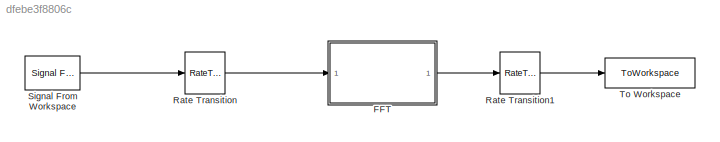
MODEL slx_dfebe3f8806c
KIND model
CONFIG AbsTol = auto
CONFIG EnableMultiTasking = off
CONFIG FixedStep = auto
CONFIG InitFcn = simulinkInitFFT
CONFIG MaxStep = auto
CONFIG MinStep = auto
CONFIG PostLoadFcn = addpath([fileparts(which(bdroot)) filesep '..' filesep])
CONFIG RelTol = 1e-3
CONFIG SampleTimeConstraint = Unconstrained
CONFIG SolverName = FixedStepDiscrete
CONFIG StartTime = 0.0
CONFIG StopFcn = simulinkVerifyFFT
CONFIG StopTime = stopTime
BLOCK [SubSystem] FFT
  Ports = [1, 1]
  ReferencedSubsystem = FFT
  RequestExecContextInheritance = off
BLOCK [RateTransition] Rate Transition
  Deterministic = off
  OutPortSampleTime = params.systemClockPeriod
BLOCK [RateTransition] Rate Transition1
  OutPortSampleTime = params.samplingPeriod
BLOCK [Reference] Signal From Workspace  REF=dspsrcs4/Signal From
Workspace
  Ports = [0, 1]
  SourceBlock = dspsrcs4/Signal From\nWorkspace
  SourceProductBaseCode = DS
  SourceType = Signal From Workspace
BLOCK [ToWorkspace] To Workspace
  FixptAsFi = on
  MaxDataPoints = inf
  Ports = [1]
  SampleTime = -1
  Save2DSignal = 2-D array (concatenate along first dimension)
  VariableName = outputData
LINE FFT:1 -> Rate Transition1:1
LINE Rate Transition1:1 -> To Workspace:1
LINE Rate Transition:1 -> FFT:1
LINE Signal From Workspace:1 -> Rate Transition:1
